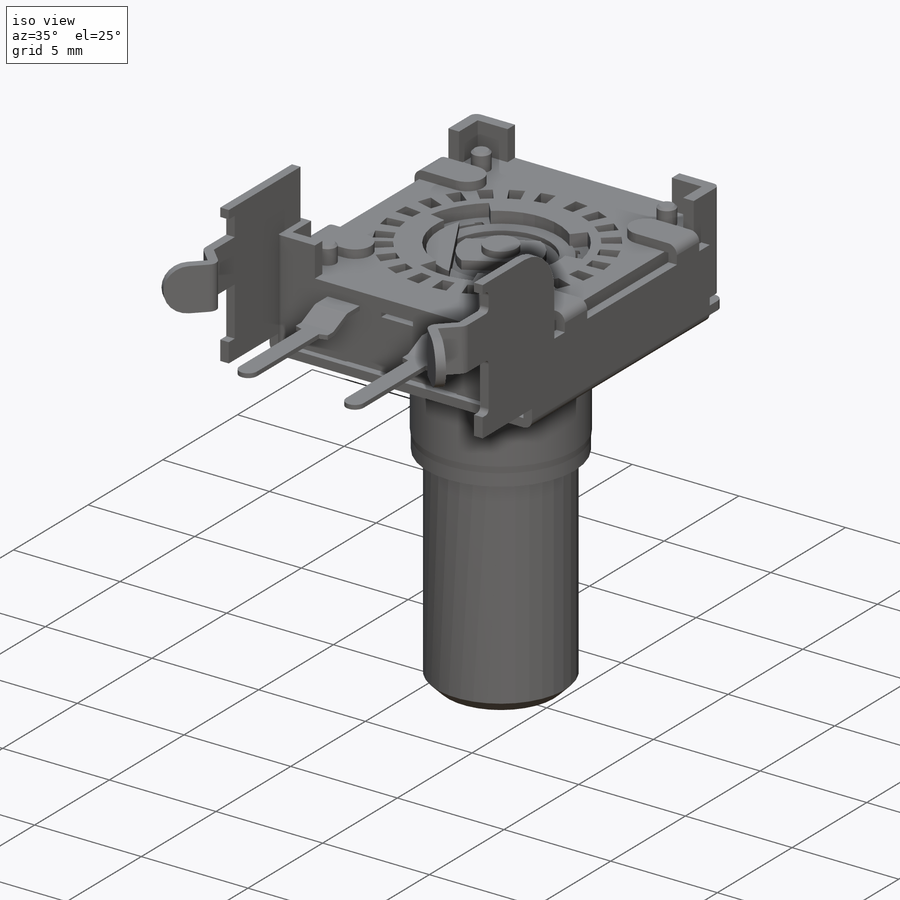
[diagram: iso view]
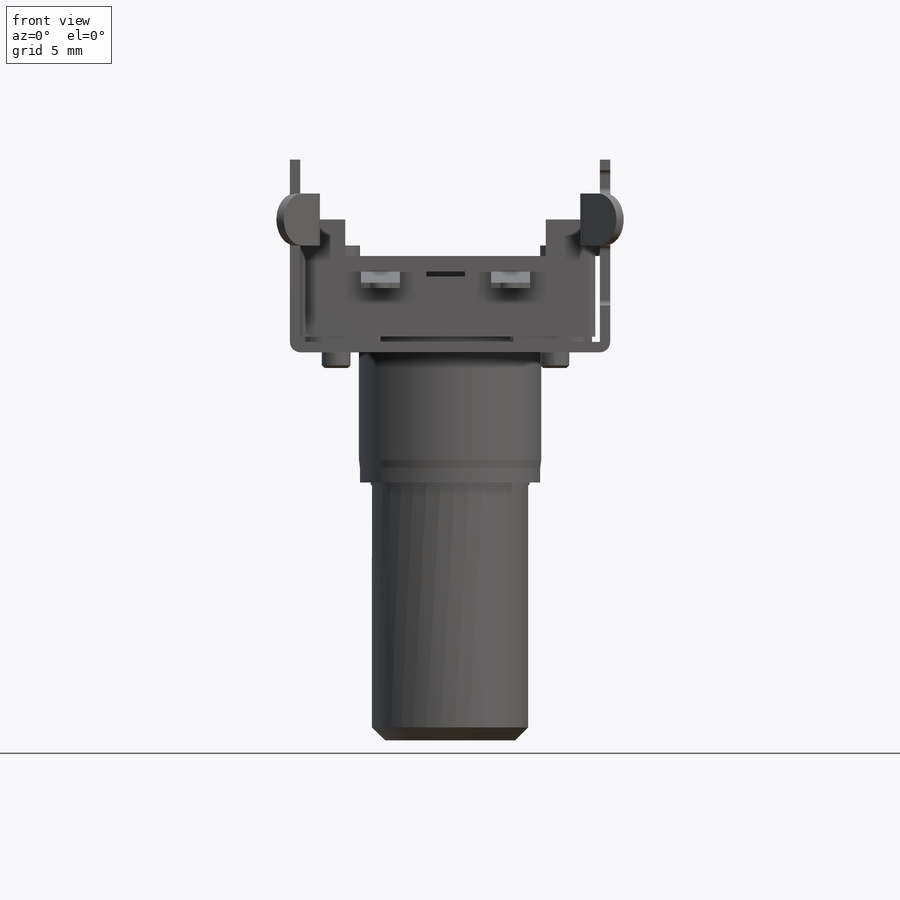
[diagram: front view]
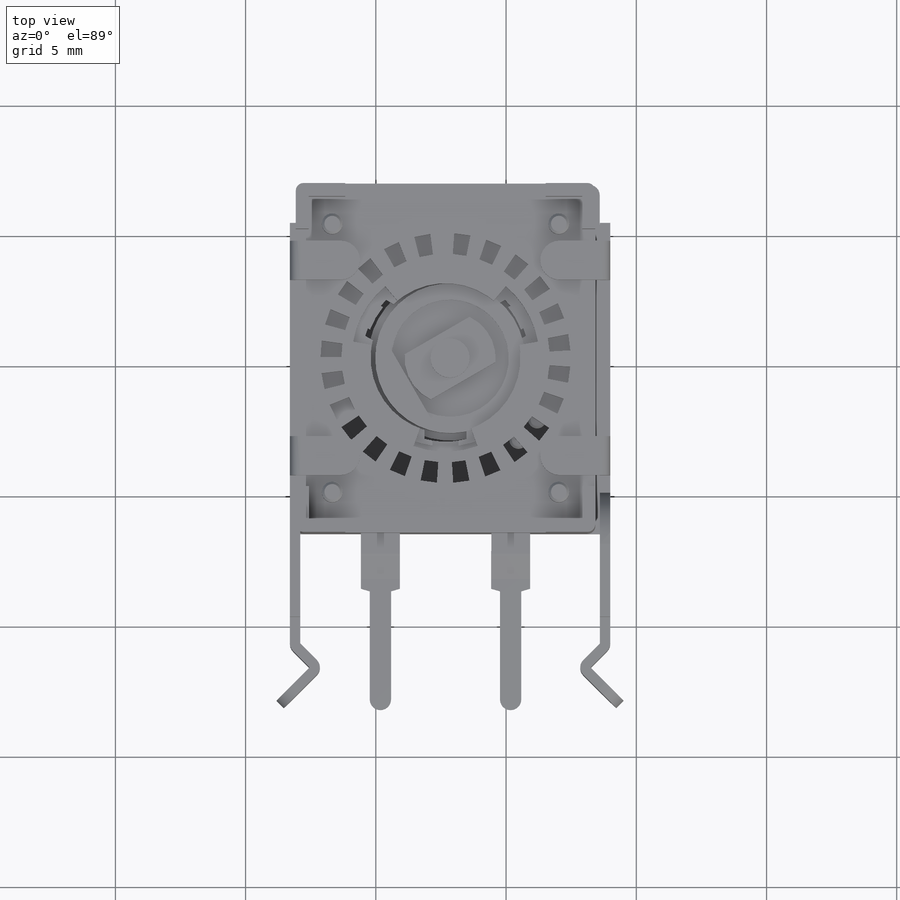
[diagram: top view]
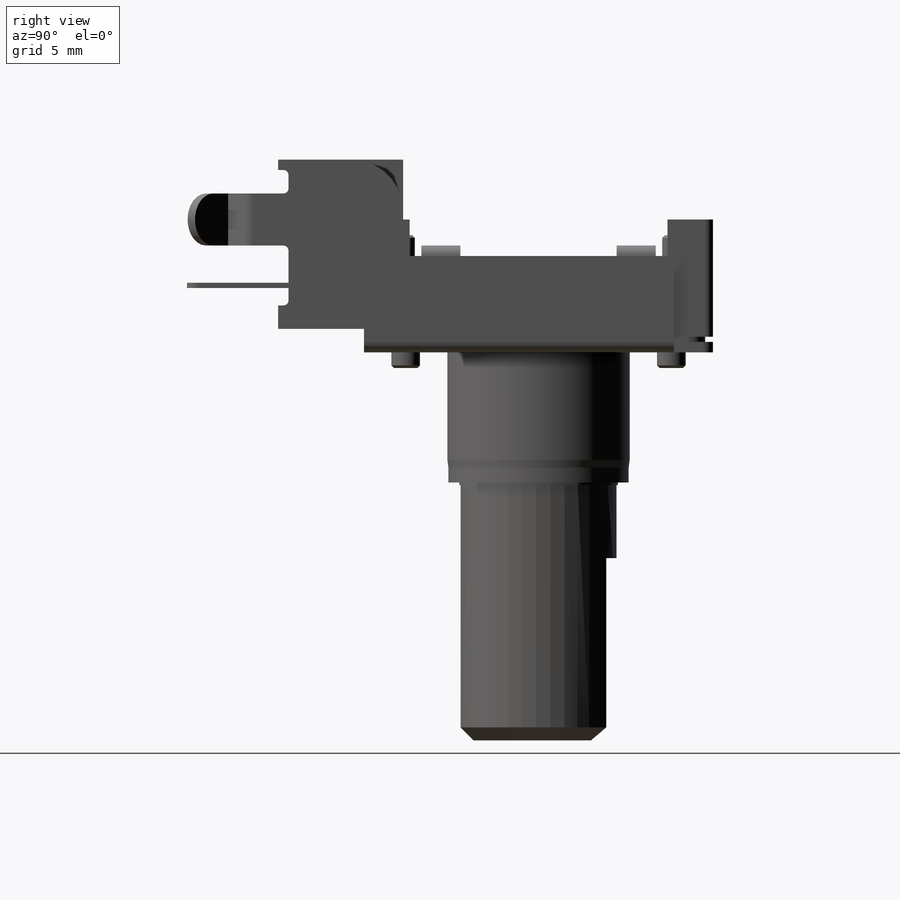
[diagram: right view]
SOLIDWORKS PART (.sldprt)
format: sldprt  version: not decoded by parser v0  size: 3,325,952 bytes
history: native  units: mm
features: plane x18, sketch x10, hole x4, move_body x4, material x1, extrude x1 + 5 further entries (+35 scaffold rows collapsed; 18 parser-record rows omitted)
feature tree (96):
  scaffold x35  (default folders/planes/origin — collapsed)
  material  "Material <not specified>"
  "DetailItem3"  RD2=123.825mm RD3=123.825mm RD4=7.62mm RD5=7.62mm RD1=133.35mm RD6=50.8mm RD7=18.115mm RD8=44.115mm RD9=89.235mm RD10=115.235mm RD11=26mm RD12=26mm RD14=28mm
  sketch  "Sketch1"  dims[c1.D1=26.0mm c1.D2=26.0mm c1.D3=97.12mm c1.D4=10.0mm c1.D5=133.35mm c1.D6=38.1mm c2.D4=28.0mm c2.D7=~153.58601mm]
  extrude  "Boss-Extrude1"  Depth=1.5748mm
  hole  "Ø2.5mm Dowel Hole1"  Diameter=2.5mm Depth=1.5748mm
  sketch  "Sketch3"
  sketch  "Sketch4"  dims[hole-wizard template sketch: 60 standard entries collapsed; hole parameters kept: c18.Thru Hole Depth=1.5748mm]
  sketch  "Sketch5"
  plane  "Front Plane-AWK-105-0009"
  plane  "Top Plane-AWK-105-0009"
  plane  "Right Plane-AWK-105-0009"
  plane  "Plane1-AWK-105-0009"
  plane  "Plane2-AWK-105-0009"
  "AWK-105-0009"
  parser-record x18  (decoder bookkeeping rows leaked as tree rows — omitted from the tree; the rows remain in map.json)
  move_body  "Body-Move/Copy2"
  plane  "Front Plane-AWK-105-0008"
  plane  "Top Plane-AWK-105-0008"
  plane  "Right Plane-AWK-105-0008"
  plane  "Plane3-AWK-105-0008"
  plane  "Plane4-AWK-105-0008"
  plane  "Plane5-AWK-105-0008"
  "AWK-105-0008"
  move_body  "Body-Move/Copy4"
  hole  "M2.5 Clearance Hole2"  Diameter=2.9mm Depth=4.1mm
  sketch  "Sketch7"
  sketch  "Sketch8"  dims[Thru Hole Dia.=2.9mm Thru Hole Depth=4.1mm]
  hole  "Ø1.7 (1.7) Diameter Hole1"  Diameter=1.7mm Depth=1.5758mm
  sketch  "Sketch12"  dims[D1=7.62mm D2=7.62mm D3=33.528mm D4=8.89mm D5=18.034mm]
  sketch  "Sketch11"  dims[hole-wizard template sketch: 59 standard entries collapsed; hole parameters kept: c18.Thru Hole Dia.=1.7mm c18.Thru Hole Depth=1.5758mm]
  plane  "Plane1"
  plane  "Front Plane-bk-92"
  plane  "Top Plane-bk-92"
  plane  "Right Plane-bk-92"
  "bk-92"
  move_body  "Body-Move/Copy10"
  plane  "Front Plane-bk-922"
  plane  "Top Plane-bk-922"
  plane  "Right Plane-bk-922"
  "bk-922"
  move_body  "Body-Move/Copy12"
  hole  "Ø1.7 (1.7) Diameter Hole2"  Diameter=1.7mm Depth=1.5758mm
  sketch  "Sketch16"
  sketch  "Sketch15"  dims[hole-wizard template sketch: 59 standard entries collapsed; hole parameters kept: c18.Thru Hole Dia.=1.7mm c18.Thru Hole Depth=1.5758mm]
decode coverage: 11 of 19 modeling features carry decoded parameters; 5 rows unclassified (native names shown)
note: ~ marks probable driven/reference dimensions
summary: Diameter pulled from absorbed wizard sketch
note: suppression state not decoded; provenance and decode notes live in map.json
